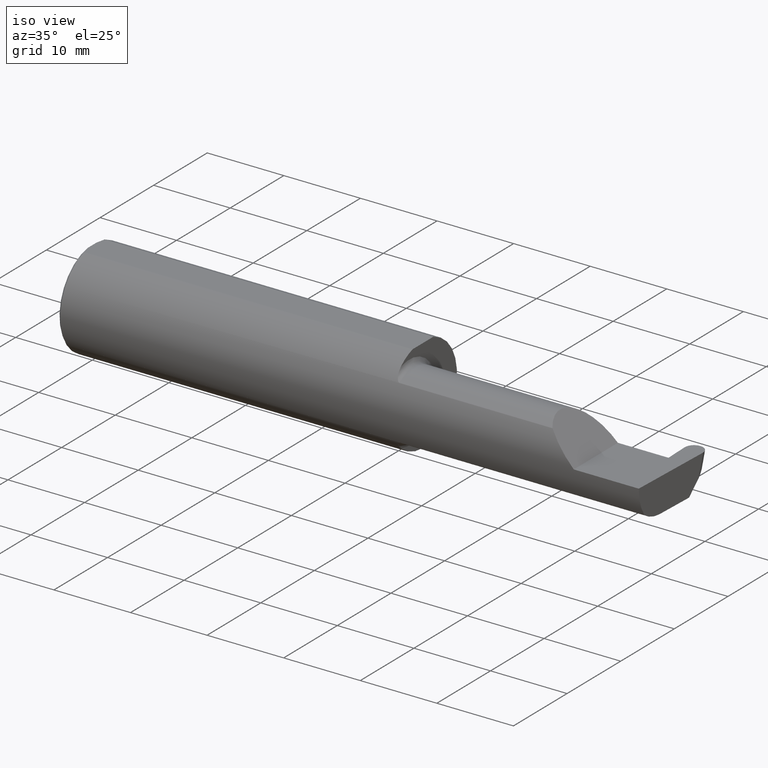
[diagram: clean part render]
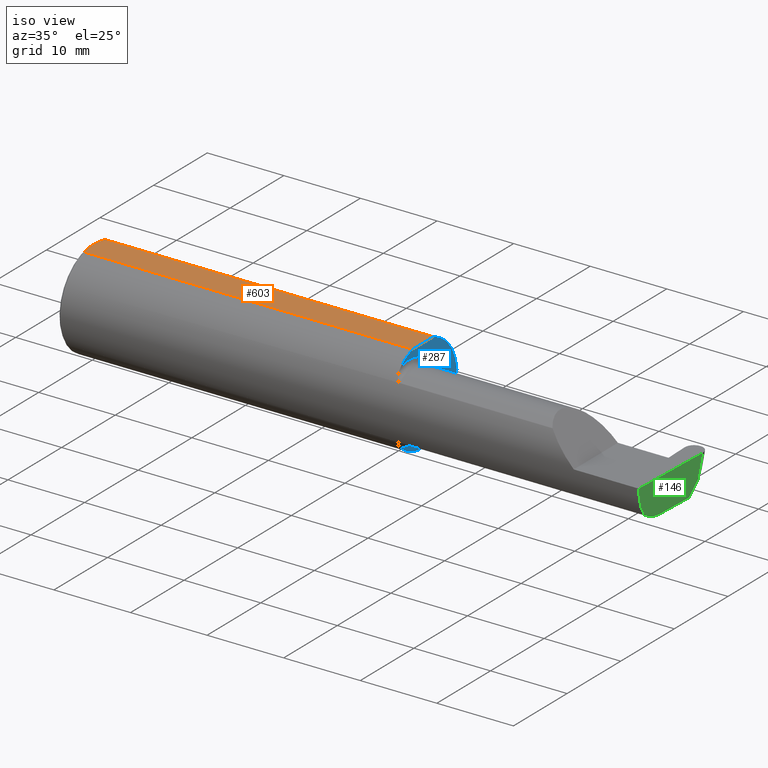
[diagram: same view with three faces highlighted in distinct colors, each labeled with its STEP entity id]
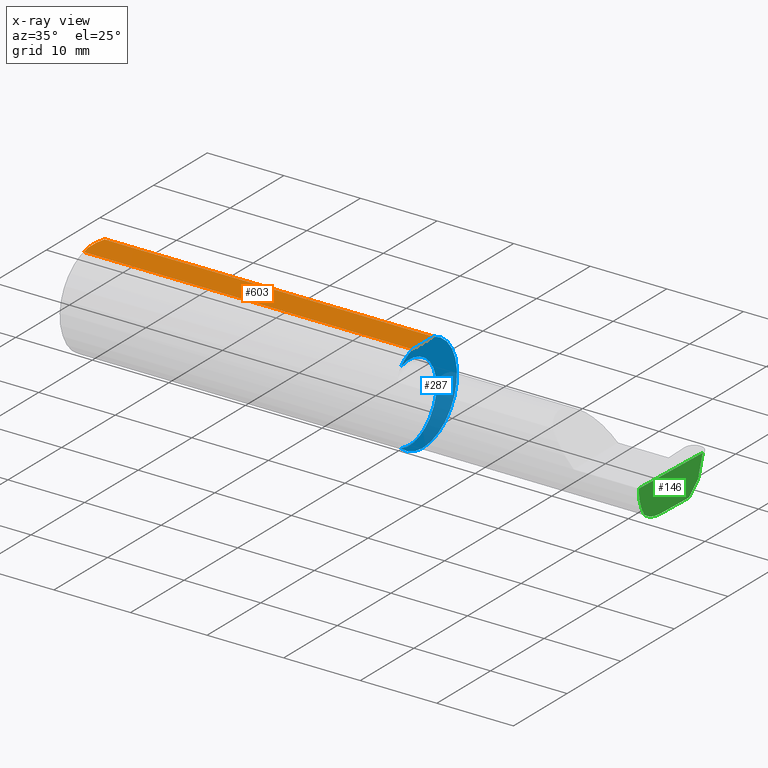
[diagram: x-ray of the same camera — body ghosted, the three highlighted faces saturated]
A machine part, iso view with three faces highlighted in distinct colors.
The next image is the same camera in x-ray (body ghosted, the three faces saturated) — at least one of them is partly hidden behind the body in this view.
Their STEP definitions:

[orange] entity #603 — the highlighted planar face has unit normal (0, 0, 1).
#1 = CARTESIAN_POINT ( 'NONE',  ( 0.009999999999999856226, 0.07650098038587520299, 0.2378499999999998671 ) ) ;
#2 = VERTEX_POINT ( 'NONE', #653 ) ;
#12 = EDGE_CURVE ( 'NONE', #59, #184, #541, .T. ) ;
#56 = CARTESIAN_POINT ( 'NONE',  ( 0.000000000000000000, 0.03090954545120574992, 0.2378499999999998671 ) ) ;
#59 = VERTEX_POINT ( 'NONE', #482 ) ;
#63 = CARTESIAN_POINT ( 'NONE',  ( 0.000000000000000000, 0.03090954545120574992, 0.2378499999999998671 ) ) ;
#68 = EDGE_CURVE ( 'NONE', #2, #59, #402, .T. ) ;
#70 = LINE ( 'NONE', #454, #470 ) ;
#101 = EDGE_CURVE ( 'NONE', #184, #698, #594, .T. ) ;
#102 = CARTESIAN_POINT ( 'NONE',  ( 0.001983148254845701515, -0.04629825796642599717, 0.2378499999999998671 ) ) ;
#152 = CARTESIAN_POINT ( 'NONE',  ( 0.000000000000000000, -0.03090954545120560767, 0.2378499999999998671 ) ) ;
#180 = VERTEX_POINT ( 'NONE', #491 ) ;
#184 = VERTEX_POINT ( 'NONE', #63 ) ;
#215 = VECTOR ( 'NONE', #363, 39.37007874015748143 ) ;
#216 = DIRECTION ( 'NONE',  ( 1.000000000000000000, 0.000000000000000000, -0.000000000000000000 ) ) ;
#219 = EDGE_LOOP ( 'NONE', ( #566, #544, #538, #306, #420, #334 ) ) ;
#250 = VECTOR ( 'NONE', #595, 39.37007874015748143 ) ;
#252 = CARTESIAN_POINT ( 'NONE',  ( 0.009999999999999856226, 0.07650098038587520299, 0.2378499999999998671 ) ) ;
#306 = ORIENTED_EDGE ( 'NONE', *, *, #101, .F. ) ;
#307 = CARTESIAN_POINT ( 'NONE',  ( 0.000000000000000000, -0.07650098038587520299, 0.2378499999999998671 ) ) ;
#317 = DIRECTION ( 'NONE',  ( -0.000000000000000000, 1.000000000000000000, -0.000000000000000000 ) ) ;
#321 = EDGE_CURVE ( 'NONE', #180, #698, #70, .T. ) ;
#324 = VECTOR ( 'NONE', #317, 39.37007874015748143 ) ;
#329 = CARTESIAN_POINT ( 'NONE',  ( 0.005466242398876384675, 0.06169385855649840017, 0.2378499999999998671 ) ) ;
#334 = ORIENTED_EDGE ( 'NONE', *, *, #68, .F. ) ;
#363 = DIRECTION ( 'NONE',  ( 4.247829560181828762E-17, 1.000000000000000000, -0.000000000000000000 ) ) ;
#367 = CARTESIAN_POINT ( 'NONE',  ( 0.000000000000000000, 0.2498499999999998500, 0.2378499999999998671 ) ) ;
#371 = LINE ( 'NONE', #307, #250 ) ;
#384 = EDGE_CURVE ( 'NONE', #686, #180, #480, .T. ) ;
#391 = EDGE_CURVE ( 'NONE', #2, #686, #371, .T. ) ;
#402 = B_SPLINE_CURVE_WITH_KNOTS ( 'NONE', 3,
 ( #422, #427, #102, #152 ),
 .UNSPECIFIED., .F., .F.,
 ( 4, 4 ),
 ( 0.01317593029100230795, 0.01435802289191462008 ),
 .UNSPECIFIED. ) ;
#420 = ORIENTED_EDGE ( 'NONE', *, *, #12, .F. ) ;
#422 = CARTESIAN_POINT ( 'NONE',  ( 0.009999999999999856226, -0.07650098038587520299, 0.2378499999999998671 ) ) ;
#427 = CARTESIAN_POINT ( 'NONE',  ( 0.005459900170181723050, -0.06167314502012866823, 0.2378499999999998671 ) ) ;
#443 = CARTESIAN_POINT ( 'NONE',  ( 0.002005502345409059580, 0.04647171987093979412, 0.2378499999999998671 ) ) ;
#454 = CARTESIAN_POINT ( 'NONE',  ( 0.000000000000000000, 0.07650098038587520299, 0.2378499999999998671 ) ) ;
#470 = VECTOR ( 'NONE', #693, 39.37007874015748143 ) ;
#480 = LINE ( 'NONE', #585, #215 ) ;
#482 = CARTESIAN_POINT ( 'NONE',  ( 0.000000000000000000, -0.03090954545120560767, 0.2378499999999998671 ) ) ;
#490 = CARTESIAN_POINT ( 'NONE',  ( 3.501298404146671484, 0.2498499999999998500, 0.2378499999999998671 ) ) ;
#491 = CARTESIAN_POINT ( 'NONE',  ( 1.700000000000000178, 0.07650098038587520299, 0.2378499999999998671 ) ) ;
#513 = DIRECTION ( 'NONE',  ( 0.000000000000000000, 0.000000000000000000, 1.000000000000000000 ) ) ;
#538 = ORIENTED_EDGE ( 'NONE', *, *, #321, .T. ) ;
#541 = LINE ( 'NONE', #367, #324 ) ;
#544 = ORIENTED_EDGE ( 'NONE', *, *, #384, .T. ) ;
#552 = PLANE ( 'NONE',  #670 ) ;
#566 = ORIENTED_EDGE ( 'NONE', *, *, #391, .T. ) ;
#585 = CARTESIAN_POINT ( 'NONE',  ( 1.700000000000000178, 0.2498499999999999333, 0.2378499999999998671 ) ) ;
#594 = B_SPLINE_CURVE_WITH_KNOTS ( 'NONE', 3,
 ( #56, #443, #329, #1 ),
 .UNSPECIFIED., .F., .F.,
 ( 4, 4 ),
 ( 0.01593449416844770414, 0.01712021724825603733 ),
 .UNSPECIFIED. ) ;
#595 = DIRECTION ( 'NONE',  ( 1.000000000000000000, 0.000000000000000000, 0.000000000000000000 ) ) ;
#603 = ADVANCED_FACE ( 'NONE', ( #680 ), #552, .T. ) ;
#644 = CARTESIAN_POINT ( 'NONE',  ( 1.700000000000000178, -0.07650098038587527238, 0.2378499999999998671 ) ) ;
#653 = CARTESIAN_POINT ( 'NONE',  ( 0.009999999999999856226, -0.07650098038587520299, 0.2378499999999998671 ) ) ;
#670 = AXIS2_PLACEMENT_3D ( 'NONE', #490, #513, #216 ) ;
#680 = FACE_OUTER_BOUND ( 'NONE', #219, .T. ) ;
#686 = VERTEX_POINT ( 'NONE', #644 ) ;
#693 = DIRECTION ( 'NONE',  ( -1.000000000000000000, -0.000000000000000000, -0.000000000000000000 ) ) ;
#698 = VERTEX_POINT ( 'NONE', #252 ) ;

[blue] entity #287 — the highlighted planar face has unit normal (1, -0, 0).
#75 = ORIENTED_EDGE ( 'NONE', *, *, #526, .T. ) ;
#116 = CIRCLE ( 'NONE', #162, 0.2498499999999999888 ) ;
#144 = DIRECTION ( 'NONE',  ( -1.000000000000000000, 4.247829560181828762E-17, -0.000000000000000000 ) ) ;
#162 = AXIS2_PLACEMENT_3D ( 'NONE', #466, #405, #342 ) ;
#180 = VERTEX_POINT ( 'NONE', #491 ) ;
#186 = DIRECTION ( 'NONE',  ( 1.000000000000000000, -4.247829560181828762E-17, 0.000000000000000000 ) ) ;
#193 = CARTESIAN_POINT ( 'NONE',  ( 1.700000000000000178, 0.2498499999999998500, 0.000000000000000000 ) ) ;
#215 = VECTOR ( 'NONE', #363, 39.37007874015748143 ) ;
#240 = ORIENTED_EDGE ( 'NONE', *, *, #384, .F. ) ;
#245 = DIRECTION ( 'NONE',  ( 4.247829560181828762E-17, 1.000000000000000000, 0.000000000000000000 ) ) ;
#279 = EDGE_CURVE ( 'NONE', #686, #679, #527, .T. ) ;
#287 = ADVANCED_FACE ( 'NONE', ( #574 ), #292, .T. ) ;
#292 = PLANE ( 'NONE',  #435 ) ;
#300 = DIRECTION ( 'NONE',  ( 1.000000000000000000, -4.247829560181828762E-17, 0.000000000000000000 ) ) ;
#325 = DIRECTION ( 'NONE',  ( 0.000000000000000000, -1.000000000000000000, 0.000000000000000000 ) ) ;
#340 = EDGE_CURVE ( 'NONE', #393, #180, #116, .T. ) ;
#342 = DIRECTION ( 'NONE',  ( 0.000000000000000000, 1.000000000000000000, 0.000000000000000000 ) ) ;
#346 = AXIS2_PLACEMENT_3D ( 'NONE', #366, #144, #325 ) ;
#350 = DIRECTION ( 'NONE',  ( 0.000000000000000000, 1.000000000000000000, 0.000000000000000000 ) ) ;
#363 = DIRECTION ( 'NONE',  ( 4.247829560181828762E-17, 1.000000000000000000, -0.000000000000000000 ) ) ;
#366 = CARTESIAN_POINT ( 'NONE',  ( 1.700000000000000178, -0.1008500000000000785, 0.000000000000000000 ) ) ;
#384 = EDGE_CURVE ( 'NONE', #686, #180, #480, .T. ) ;
#390 = ORIENTED_EDGE ( 'NONE', *, *, #279, .T. ) ;
#393 = VERTEX_POINT ( 'NONE', #704 ) ;
#405 = DIRECTION ( 'NONE',  ( 1.000000000000000000, -4.247829560181828762E-17, 0.000000000000000000 ) ) ;
#414 = ORIENTED_EDGE ( 'NONE', *, *, #340, .T. ) ;
#435 = AXIS2_PLACEMENT_3D ( 'NONE', #193, #186, #245 ) ;
#466 = CARTESIAN_POINT ( 'NONE',  ( 1.700000000000000178, 0.000000000000000000, 0.000000000000000000 ) ) ;
#468 = CARTESIAN_POINT ( 'NONE',  ( 1.700000000000000178, -0.1616050818046603776, 0.1905487340154980724 ) ) ;
#480 = LINE ( 'NONE', #585, #215 ) ;
#491 = CARTESIAN_POINT ( 'NONE',  ( 1.700000000000000178, 0.07650098038587520299, 0.2378499999999998671 ) ) ;
#514 = CIRCLE ( 'NONE', #346, 0.1999999999999999833 ) ;
#526 = EDGE_CURVE ( 'NONE', #679, #393, #514, .T. ) ;
#527 = CIRCLE ( 'NONE', #701, 0.2498499999999999888 ) ;
#571 = CARTESIAN_POINT ( 'NONE',  ( 1.700000000000000178, 0.000000000000000000, 0.000000000000000000 ) ) ;
#574 = FACE_OUTER_BOUND ( 'NONE', #624, .T. ) ;
#585 = CARTESIAN_POINT ( 'NONE',  ( 1.700000000000000178, 0.2498499999999999333, 0.2378499999999998671 ) ) ;
#624 = EDGE_LOOP ( 'NONE', ( #414, #240, #390, #75 ) ) ;
#644 = CARTESIAN_POINT ( 'NONE',  ( 1.700000000000000178, -0.07650098038587527238, 0.2378499999999998671 ) ) ;
#679 = VERTEX_POINT ( 'NONE', #468 ) ;
#686 = VERTEX_POINT ( 'NONE', #644 ) ;
#701 = AXIS2_PLACEMENT_3D ( 'NONE', #571, #300, #350 ) ;
#704 = CARTESIAN_POINT ( 'NONE',  ( 1.700000000000000178, -0.1616050818046603776, -0.1905487340154980724 ) ) ;

[green] entity #146 — the highlighted planar face has unit normal (-0.9992, 0.0349, 0.0175).
#11 = CARTESIAN_POINT ( 'NONE',  ( 2.983451391416268805, -0.2498499999999999610, -0.04956584089959722994 ) ) ;
#32 = DIRECTION ( 'NONE',  ( 0.02590004391968220646, 0.2587322210431824421, 0.9656017944882974158 ) ) ;
#55 = CARTESIAN_POINT ( 'NONE',  ( 2.983123056744215962, -0.2355204011147991328, -0.09701513151466793772 ) ) ;
#73 = CARTESIAN_POINT ( 'NONE',  ( 2.983360130692194634, -0.2080850024789288044, -0.1382955322609671633 ) ) ;
#83 = CARTESIAN_POINT ( 'NONE',  ( 2.986463790105515770, -0.1008500000000002589, -0.1750000000000000722 ) ) ;
#87 = CARTESIAN_POINT ( 'NONE',  ( 2.999933069103034811, 0.1971629156477838762, 0.0003401160246315276196 ) ) ;
#108 = VECTOR ( 'NONE', #421, 39.37007874015748854 ) ;
#109 = CARTESIAN_POINT ( 'NONE',  ( 2.983360130692194634, -0.2080850024789288044, -0.1382955322609671633 ) ) ;
#118 = VERTEX_POINT ( 'NONE', #221 ) ;
#143 = CARTESIAN_POINT ( 'NONE',  ( 2.986970135337519761, -0.08635016968773899515, -0.1750000000000000722 ) ) ;
#146 = ADVANCED_FACE ( 'NONE', ( #276 ), #382, .F. ) ;
#163 = CARTESIAN_POINT ( 'NONE',  ( 2.999923946274115405, 0.1970717818336509553, 0.000000000000000000 ) ) ;
#174 = VERTEX_POINT ( 'NONE', #548 ) ;
#191 = ORIENTED_EDGE ( 'NONE', *, *, #521, .T. ) ;
#194 =( BOUNDED_CURVE ( )  B_SPLINE_CURVE ( 3, ( #73, #55, #11, #509 ),
 .UNSPECIFIED., .F., .T. ) 
 B_SPLINE_CURVE_WITH_KNOTS ( ( 4, 4 ),
 ( 6.160376845738969820, 6.746954780470629132 ),
 .UNSPECIFIED. ) 
 CURVE ( )  GEOMETRIC_REPRESENTATION_ITEM ( )  RATIONAL_B_SPLINE_CURVE ( ( 1.000000000000000000, 0.9715321379117536349, 0.9715321379117536349, 1.000000000000000000 ) ) 
 REPRESENTATION_ITEM ( '' )  );
#202 = ORIENTED_EDGE ( 'NONE', *, *, #551, .F. ) ;
#205 = VECTOR ( 'NONE', #32, 39.37007874015748854 ) ;
#221 = CARTESIAN_POINT ( 'NONE',  ( 2.984317093749864647, -0.2498499999999999888, 0.000000000000000000 ) ) ;
#225 = EDGE_CURVE ( 'NONE', #174, #572, #515, .T. ) ;
#230 = AXIS2_PLACEMENT_3D ( 'NONE', #389, #500, #336 ) ;
#236 = DIRECTION ( 'NONE',  ( -0.03489949670249360703, -0.9993908270190959842, 0.000000000000000000 ) ) ;
#276 = FACE_OUTER_BOUND ( 'NONE', #575, .T. ) ;
#286 = LINE ( 'NONE', #547, #448 ) ;
#302 = EDGE_CURVE ( 'NONE', #174, #584, #510, .T. ) ;
#319 = CARTESIAN_POINT ( 'NONE',  ( 2.983360130692194634, -0.2080850024789288044, -0.1382955322609671633 ) ) ;
#328 = CARTESIAN_POINT ( 'NONE',  ( 2.993681016992925770, 0.1058243371481696476, -0.1750000000000001277 ) ) ;
#336 = DIRECTION ( 'NONE',  ( -0.03489949670249360009, -0.9993908270190959842, 0.000000000000000000 ) ) ;
#354 = VERTEX_POINT ( 'NONE', #83 ) ;
#373 = ORIENTED_EDGE ( 'NONE', *, *, #225, .F. ) ;
#382 = PLANE ( 'NONE',  #230 ) ;
#389 = CARTESIAN_POINT ( 'NONE',  ( 2.999971321010222347, 0.1984284167760241857, 0.000000000000000000 ) ) ;
#397 = ORIENTED_EDGE ( 'NONE', *, *, #707, .F. ) ;
#407 = ORIENTED_EDGE ( 'NONE', *, *, #582, .T. ) ;
#417 = CARTESIAN_POINT ( 'NONE',  ( 2.984022185481226330, -0.1771157075472507281, -0.1623092683844333250 ) ) ;
#421 = DIRECTION ( 'NONE',  ( -0.03489949670249360009, -0.9993908270190959842, 1.222058880457094394E-16 ) ) ;
#448 = VECTOR ( 'NONE', #236, 39.37007874015748143 ) ;
#463 = DIRECTION ( 'NONE',  ( -0.03701744261649772549, -0.7066221440565400025, -0.7066221440565478851 ) ) ;
#471 = CARTESIAN_POINT ( 'NONE',  ( 2.996324603059298930, 0.1562874789046420076, -0.1245368582435272126 ) ) ;
#499 = ORIENTED_EDGE ( 'NONE', *, *, #302, .T. ) ;
#500 = DIRECTION ( 'NONE',  ( -0.9992386149554828290, 0.03489418134010630057, 0.01745240643728358798 ) ) ;
#509 = CARTESIAN_POINT ( 'NONE',  ( 2.984317093749864647, -0.2498499999999999888, 0.000000000000000000 ) ) ;
#510 = LINE ( 'NONE', #87, #205 ) ;
#515 = LINE ( 'NONE', #471, #684 ) ;
#521 = EDGE_CURVE ( 'NONE', #560, #354, #567, .T. ) ;
#543 = CARTESIAN_POINT ( 'NONE',  ( 2.985095289412895703, -0.1400387324517232412, -0.1750000000000000722 ) ) ;
#547 = CARTESIAN_POINT ( 'NONE',  ( 2.999971321010222347, 0.1984284167760241857, 0.000000000000000000 ) ) ;
#548 = CARTESIAN_POINT ( 'NONE',  ( 2.996855212037247362, 0.1664162189566759098, -0.1144081181914932133 ) ) ;
#551 = EDGE_CURVE ( 'NONE', #560, #118, #194, .T. ) ;
#560 = VERTEX_POINT ( 'NONE', #109 ) ;
#567 =( BOUNDED_CURVE ( )  B_SPLINE_CURVE ( 3, ( #319, #417, #543, #589 ),
 .UNSPECIFIED., .F., .F. ) 
 B_SPLINE_CURVE_WITH_KNOTS ( ( 4, 4 ),
 ( 0.4474640105399506074, 1.107026853503852104 ),
 .UNSPECIFIED. ) 
 CURVE ( )  GEOMETRIC_REPRESENTATION_ITEM ( )  RATIONAL_B_SPLINE_CURVE ( ( 1.000000000000000000, 0.9640754331822833922, 0.9640754331822833922, 1.000000000000000000 ) ) 
 REPRESENTATION_ITEM ( '' )  );
#572 = VERTEX_POINT ( 'NONE', #328 ) ;
#575 = EDGE_LOOP ( 'NONE', ( #373, #499, #407, #202, #191, #397 ) ) ;
#576 = LINE ( 'NONE', #143, #108 ) ;
#582 = EDGE_CURVE ( 'NONE', #584, #118, #286, .T. ) ;
#584 = VERTEX_POINT ( 'NONE', #163 ) ;
#589 = CARTESIAN_POINT ( 'NONE',  ( 2.986463790105515770, -0.1008500000000002589, -0.1750000000000000722 ) ) ;
#684 = VECTOR ( 'NONE', #463, 39.37007874015748143 ) ;
#707 = EDGE_CURVE ( 'NONE', #572, #354, #576, .T. ) ;